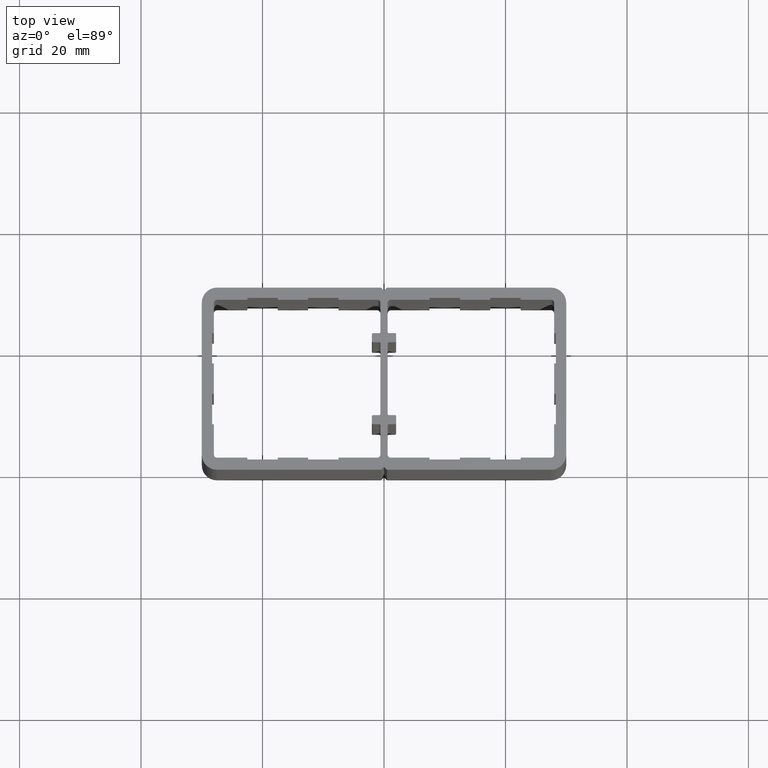
[diagram: clean part render]
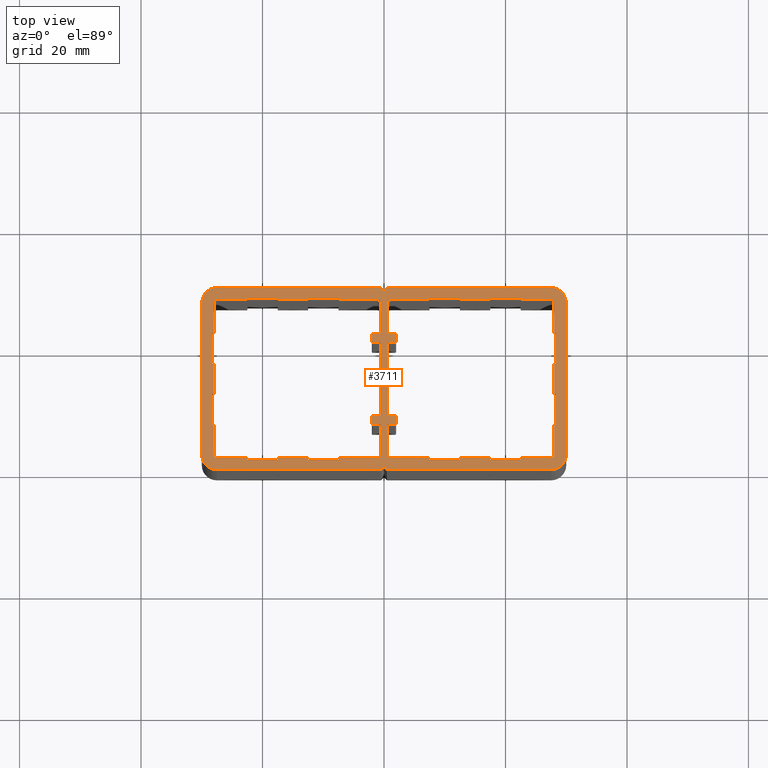
[diagram: same view with one face highlighted and labeled with its STEP entity id]
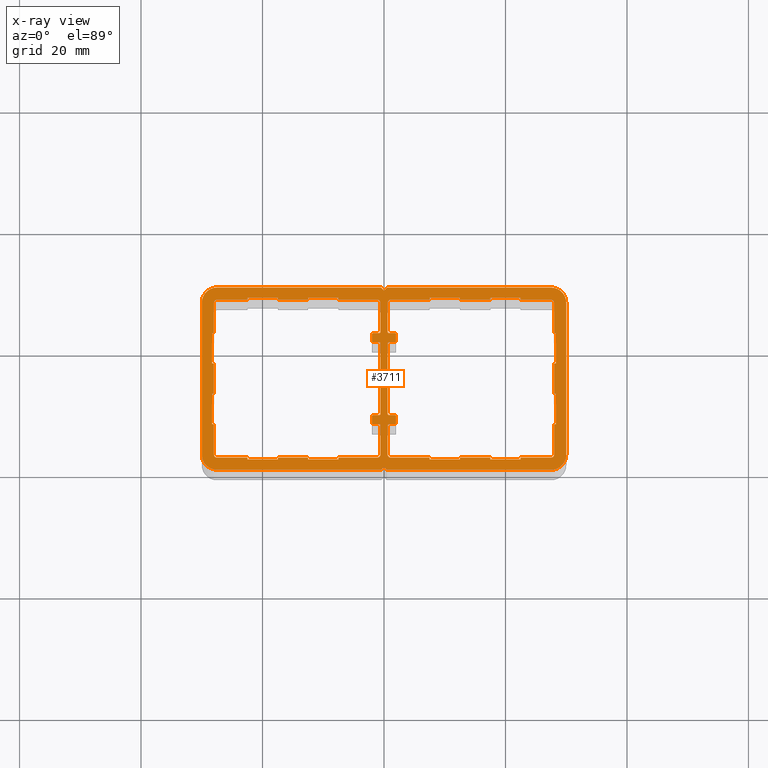
[diagram: x-ray of the same camera — body ghosted, the highlighted face saturated]
A machine part, top view. The second image highlights one B-rep face of the part: STEP entity #3711.
The next image is the same camera in x-ray: the body ghosted, the highlighted face saturated — about 0% of this face is hidden behind the body in this view.
In plain terms, the highlighted planar face has unit normal (0, 0, 1).
Its self-contained STEP definition (entity closure, byte-faithful):
#17=CARTESIAN_POINT('',(29.999999999985107,26.999999999972601,100.0));
#18=VERTEX_POINT('',#17);
#25=CARTESIAN_POINT('',(29.999999999985107,1.999999999997499,100.0));
#26=VERTEX_POINT('',#25);
#27=CARTESIAN_POINT('',(29.999999999985107,1.999999999997499,100.0));
#28=DIRECTION('',(0.0,1.0,0.0));
#29=VECTOR('',#28,24.999999999975103);
#30=LINE('',#27,#29);
#31=EDGE_CURVE('',#26,#18,#30,.T.);
#56=CARTESIAN_POINT('',(27.499999999987608,29.499999999969987,100.0));
#57=VERTEX_POINT('',#56);
#64=CARTESIAN_POINT('',(27.499999999987608,26.999999999972601,100.0));
#65=DIRECTION('',(0.0,0.0,1.0));
#66=DIRECTION('',(1.0,0.0,0.0));
#67=AXIS2_PLACEMENT_3D('',#64,#65,#66);
#68=CIRCLE('',#67,2.499999999997500);
#69=EDGE_CURVE('',#18,#57,#68,.T.);
#88=CARTESIAN_POINT('',(0.500000000000114,29.499999999969987,100.0));
#89=VERTEX_POINT('',#88);
#96=CARTESIAN_POINT('',(27.499999999987608,29.499999999969987,100.0));
#97=DIRECTION('',(-1.0,0.0,0.0));
#98=VECTOR('',#97,26.999999999987494);
#99=LINE('',#96,#98);
#100=EDGE_CURVE('',#57,#89,#99,.T.);
#119=CARTESIAN_POINT('',(0.0,28.999999999970100,100.0));
#120=VERTEX_POINT('',#119);
#127=CARTESIAN_POINT('',(0.500000000000114,29.499999999969987,100.0));
#128=DIRECTION('',(-0.707106781186708,-0.707106781186387,0.0));
#129=VECTOR('',#128,0.707106781186548);
#130=LINE('',#127,#129);
#131=EDGE_CURVE('',#89,#120,#130,.T.);
#150=CARTESIAN_POINT('',(-0.500000000000114,29.499999999970214,100.0));
#151=VERTEX_POINT('',#150);
#158=CARTESIAN_POINT('',(0.0,28.999999999970100,100.0));
#159=DIRECTION('',(-0.707106781186548,0.707106781186548,0.0));
#160=VECTOR('',#159,0.707106781186387);
#161=LINE('',#158,#160);
#162=EDGE_CURVE('',#120,#151,#161,.T.);
#181=CARTESIAN_POINT('',(-27.499999999987381,29.499999999970100,100.0));
#182=VERTEX_POINT('',#181);
#189=CARTESIAN_POINT('',(-0.500000000000114,29.499999999970214,100.0));
#190=DIRECTION('',(-1.0,0.0,0.0));
#191=VECTOR('',#190,26.999999999987267);
#192=LINE('',#189,#191);
#193=EDGE_CURVE('',#151,#182,#192,.T.);
#213=CARTESIAN_POINT('',(-29.999999999984993,26.999999999972601,100.0));
#214=VERTEX_POINT('',#213);
#221=CARTESIAN_POINT('',(-27.499999999987381,26.999999999972601,100.0));
#222=DIRECTION('',(0.0,0.0,1.0));
#223=DIRECTION('',(1.0,0.0,0.0));
#224=AXIS2_PLACEMENT_3D('',#221,#222,#223);
#225=CIRCLE('',#224,2.499999999997500);
#226=EDGE_CURVE('',#182,#214,#225,.T.);
#245=CARTESIAN_POINT('',(-29.999999999984880,1.999999999997499,100.0));
#246=VERTEX_POINT('',#245);
#253=CARTESIAN_POINT('',(-29.999999999984993,26.999999999972601,100.0));
#254=DIRECTION('',(0.0,-1.0,0.0));
#255=VECTOR('',#254,24.999999999975103);
#256=LINE('',#253,#255);
#257=EDGE_CURVE('',#214,#246,#256,.T.);
#277=CARTESIAN_POINT('',(-27.499999999987381,-0.499999999999886,100.0));
#278=VERTEX_POINT('',#277);
#285=CARTESIAN_POINT('',(-27.499999999987381,1.999999999997499,100.0));
#286=DIRECTION('',(0.0,0.0,1.0));
#287=DIRECTION('',(1.0,0.0,0.0));
#288=AXIS2_PLACEMENT_3D('',#285,#286,#287);
#289=CIRCLE('',#288,2.499999999997500);
#290=EDGE_CURVE('',#246,#278,#289,.T.);
#309=CARTESIAN_POINT('',(-0.499999999999886,-0.499999999999886,100.0));
#310=VERTEX_POINT('',#309);
#317=CARTESIAN_POINT('',(-27.499999999987381,-0.499999999999886,100.0));
#318=DIRECTION('',(1.0,0.0,0.0));
#319=VECTOR('',#318,26.999999999987494);
#320=LINE('',#317,#319);
#321=EDGE_CURVE('',#278,#310,#320,.T.);
#340=CARTESIAN_POINT('',(0.0,0.0,100.0));
#341=VERTEX_POINT('',#340);
#348=CARTESIAN_POINT('',(-0.499999999999886,-0.499999999999886,100.0));
#349=DIRECTION('',(0.707106781186548,0.707106781186548,0.0));
#350=VECTOR('',#349,0.707106781186387);
#351=LINE('',#348,#350);
#352=EDGE_CURVE('',#310,#341,#351,.T.);
#371=CARTESIAN_POINT('',(0.500000000000114,-0.499999999999886,100.0));
#372=VERTEX_POINT('',#371);
#379=CARTESIAN_POINT('',(0.0,0.0,100.0));
#380=DIRECTION('',(0.707106781186708,-0.707106781186387,0.0));
#381=VECTOR('',#380,0.707106781186548);
#382=LINE('',#379,#381);
#383=EDGE_CURVE('',#341,#372,#382,.T.);
#402=CARTESIAN_POINT('',(27.499999999987608,-0.500000000000000,100.0));
#403=VERTEX_POINT('',#402);
#410=CARTESIAN_POINT('',(0.500000000000114,-0.499999999999886,100.0));
#411=DIRECTION('',(1.0,0.0,0.0));
#412=VECTOR('',#411,26.999999999987494);
#413=LINE('',#410,#412);
#414=EDGE_CURVE('',#372,#403,#413,.T.);
#433=CARTESIAN_POINT('',(27.499999999987608,1.999999999997499,100.0));
#434=DIRECTION('',(0.0,0.0,1.0));
#435=DIRECTION('',(1.0,0.0,0.0));
#436=AXIS2_PLACEMENT_3D('',#433,#434,#435);
#437=CIRCLE('',#436,2.499999999997500);
#438=EDGE_CURVE('',#403,#26,#437,.T.);
#460=CARTESIAN_POINT('',(1.799999999997908,21.999999999980218,100.0));
#461=VERTEX_POINT('',#460);
#468=CARTESIAN_POINT('',(1.999999999997954,21.799999999980059,100.0));
#469=VERTEX_POINT('',#468);
#470=CARTESIAN_POINT('',(1.799999999997908,21.799999999980059,100.0));
#471=DIRECTION('',(0.0,0.0,1.0));
#472=DIRECTION('',(1.0,0.0,0.0));
#473=AXIS2_PLACEMENT_3D('',#470,#471,#472);
#474=CIRCLE('',#473,0.200000000000000);
#475=EDGE_CURVE('',#469,#461,#474,.T.);
#499=CARTESIAN_POINT('',(0.800000000014961,21.999999999980218,100.0));
#500=VERTEX_POINT('',#499);
#507=CARTESIAN_POINT('',(1.799999999997908,21.999999999980218,100.0));
#508=DIRECTION('',(-1.0,0.0,0.0));
#509=VECTOR('',#508,0.999999999982947);
#510=LINE('',#507,#509);
#511=EDGE_CURVE('',#461,#500,#510,.T.);
#531=CARTESIAN_POINT('',(0.600000000014916,22.199999999980264,100.0));
#532=VERTEX_POINT('',#531);
#539=CARTESIAN_POINT('',(0.800000000014961,22.199999999980264,100.0));
#540=DIRECTION('',(0.0,0.0,-1.0));
#541=DIRECTION('',(1.0,0.0,0.0));
#542=AXIS2_PLACEMENT_3D('',#539,#540,#541);
#543=CIRCLE('',#542,0.200000000000000);
#544=EDGE_CURVE('',#500,#532,#543,.T.);
#563=CARTESIAN_POINT('',(0.600000000014916,26.999999999972829,100.0));
#564=VERTEX_POINT('',#563);
#571=CARTESIAN_POINT('',(0.600000000014916,22.199999999980264,100.0));
#572=DIRECTION('',(0.0,1.0,0.0));
#573=VECTOR('',#572,4.799999999992565);
#574=LINE('',#571,#573);
#575=EDGE_CURVE('',#532,#564,#574,.T.);
#595=CARTESIAN_POINT('',(1.100000000014461,27.499999999972260,100.0));
#596=VERTEX_POINT('',#595);
#603=CARTESIAN_POINT('',(1.100000000014461,26.999999999972829,100.0));
#604=DIRECTION('',(0.0,0.0,-1.0));
#605=DIRECTION('',(1.0,0.0,0.0));
#606=AXIS2_PLACEMENT_3D('',#603,#604,#605);
#607=CIRCLE('',#606,0.499999999999500);
#608=EDGE_CURVE('',#564,#596,#607,.T.);
#627=CARTESIAN_POINT('',(7.500000000007503,27.499999999972260,100.0));
#628=VERTEX_POINT('',#627);
#635=CARTESIAN_POINT('',(1.100000000014461,27.499999999972260,100.0));
#636=DIRECTION('',(1.0,0.0,0.0));
#637=VECTOR('',#636,6.399999999993042);
#638=LINE('',#635,#637);
#639=EDGE_CURVE('',#596,#628,#638,.T.);
#658=CARTESIAN_POINT('',(7.500000000007503,27.799999999971988,100.0));
#659=VERTEX_POINT('',#658);
#666=CARTESIAN_POINT('',(7.500000000007503,27.499999999972260,100.0));
#667=DIRECTION('',(0.0,1.0,0.0));
#668=VECTOR('',#667,0.299999999999727);
#669=LINE('',#666,#668);
#670=EDGE_CURVE('',#628,#659,#669,.T.);
#689=CARTESIAN_POINT('',(12.500000000002615,27.799999999971988,100.0));
#690=VERTEX_POINT('',#689);
#697=CARTESIAN_POINT('',(7.500000000007503,27.799999999971988,100.0));
#698=DIRECTION('',(1.0,0.0,0.0));
#699=VECTOR('',#698,4.999999999995112);
#700=LINE('',#697,#699);
#701=EDGE_CURVE('',#659,#690,#700,.T.);
#720=CARTESIAN_POINT('',(12.500000000002615,27.499999999972260,100.0));
#721=VERTEX_POINT('',#720);
#728=CARTESIAN_POINT('',(12.500000000002615,27.799999999971988,100.0));
#729=DIRECTION('',(0.0,-1.0,0.0));
#730=VECTOR('',#729,0.299999999999727);
#731=LINE('',#728,#730);
#732=EDGE_CURVE('',#690,#721,#731,.T.);
#751=CARTESIAN_POINT('',(17.499999999997613,27.499999999972260,100.0));
#752=VERTEX_POINT('',#751);
#759=CARTESIAN_POINT('',(12.500000000002615,27.499999999972260,100.0));
#760=DIRECTION('',(1.0,0.0,0.0));
#761=VECTOR('',#760,4.999999999994998);
#762=LINE('',#759,#761);
#763=EDGE_CURVE('',#721,#752,#762,.T.);
#782=CARTESIAN_POINT('',(17.499999999997613,27.799999999971988,100.0));
#783=VERTEX_POINT('',#782);
#790=CARTESIAN_POINT('',(17.499999999997613,27.499999999972260,100.0));
#791=DIRECTION('',(0.0,1.0,0.0));
#792=VECTOR('',#791,0.299999999999727);
#793=LINE('',#790,#792);
#794=EDGE_CURVE('',#752,#783,#793,.T.);
#813=CARTESIAN_POINT('',(22.499999999992497,27.799999999971988,100.0));
#814=VERTEX_POINT('',#813);
#821=CARTESIAN_POINT('',(17.499999999997613,27.799999999971988,100.0));
#822=DIRECTION('',(1.0,0.0,0.0));
#823=VECTOR('',#822,4.999999999994884);
#824=LINE('',#821,#823);
#825=EDGE_CURVE('',#783,#814,#824,.T.);
#844=CARTESIAN_POINT('',(22.499999999992497,27.499999999972260,100.0));
#845=VERTEX_POINT('',#844);
#852=CARTESIAN_POINT('',(22.499999999992497,27.799999999971988,100.0));
#853=DIRECTION('',(0.0,-1.0,0.0));
#854=VECTOR('',#853,0.299999999999727);
#855=LINE('',#852,#854);
#856=EDGE_CURVE('',#814,#845,#855,.T.);
#875=CARTESIAN_POINT('',(27.499999999987608,27.499999999972374,100.0));
#876=VERTEX_POINT('',#875);
#883=CARTESIAN_POINT('',(22.499999999992497,27.499999999972260,100.0));
#884=DIRECTION('',(1.0,0.0,0.0));
#885=VECTOR('',#884,4.999999999995112);
#886=LINE('',#883,#885);
#887=EDGE_CURVE('',#845,#876,#886,.T.);
#907=CARTESIAN_POINT('',(27.999999999987153,26.999999999972829,100.0));
#908=VERTEX_POINT('',#907);
#915=CARTESIAN_POINT('',(27.499999999987608,26.999999999972829,100.0));
#916=DIRECTION('',(0.0,0.0,-1.0));
#917=DIRECTION('',(1.0,0.0,0.0));
#918=AXIS2_PLACEMENT_3D('',#915,#916,#917);
#919=CIRCLE('',#918,0.499999999999500);
#920=EDGE_CURVE('',#876,#908,#919,.T.);
#939=CARTESIAN_POINT('',(27.999999999987153,21.999999999977717,100.0));
#940=VERTEX_POINT('',#939);
#947=CARTESIAN_POINT('',(27.999999999987153,26.999999999972829,100.0));
#948=DIRECTION('',(0.0,-1.0,0.0));
#949=VECTOR('',#948,4.999999999995112);
#950=LINE('',#947,#949);
#951=EDGE_CURVE('',#908,#940,#950,.T.);
#970=CARTESIAN_POINT('',(28.299999999986767,21.999999999977717,100.0));
#971=VERTEX_POINT('',#970);
#978=CARTESIAN_POINT('',(27.999999999987153,21.999999999977717,100.0));
#979=DIRECTION('',(1.0,0.0,0.0));
#980=VECTOR('',#979,0.299999999999613);
#981=LINE('',#978,#980);
#982=EDGE_CURVE('',#940,#971,#981,.T.);
#1001=CARTESIAN_POINT('',(28.299999999986767,16.999999999982606,100.0));
#1002=VERTEX_POINT('',#1001);
#1009=CARTESIAN_POINT('',(28.299999999986767,21.999999999977717,100.0));
#1010=DIRECTION('',(0.0,-1.0,0.0));
#1011=VECTOR('',#1010,4.999999999995112);
#1012=LINE('',#1009,#1011);
#1013=EDGE_CURVE('',#971,#1002,#1012,.T.);
#1032=CARTESIAN_POINT('',(27.999999999987153,16.999999999982606,100.0));
#1033=VERTEX_POINT('',#1032);
#1040=CARTESIAN_POINT('',(28.299999999986767,16.999999999982606,100.0));
#1041=DIRECTION('',(-1.0,0.0,0.0));
#1042=VECTOR('',#1041,0.299999999999613);
#1043=LINE('',#1040,#1042);
#1044=EDGE_CURVE('',#1002,#1033,#1043,.T.);
#1063=CARTESIAN_POINT('',(27.999999999987153,11.999999999987494,100.0));
#1064=VERTEX_POINT('',#1063);
#1071=CARTESIAN_POINT('',(27.999999999987153,16.999999999982606,100.0));
#1072=DIRECTION('',(0.0,-1.0,0.0));
#1073=VECTOR('',#1072,4.999999999995112);
#1074=LINE('',#1071,#1073);
#1075=EDGE_CURVE('',#1033,#1064,#1074,.T.);
#1094=CARTESIAN_POINT('',(28.299999999986767,11.999999999987494,100.0));
#1095=VERTEX_POINT('',#1094);
#1102=CARTESIAN_POINT('',(27.999999999987153,11.999999999987494,100.0));
#1103=DIRECTION('',(1.0,0.0,0.0));
#1104=VECTOR('',#1103,0.299999999999613);
#1105=LINE('',#1102,#1104);
#1106=EDGE_CURVE('',#1064,#1095,#1105,.T.);
#1125=CARTESIAN_POINT('',(28.299999999986767,6.999999999992610,100.0));
#1126=VERTEX_POINT('',#1125);
#1133=CARTESIAN_POINT('',(28.299999999986767,11.999999999987494,100.0));
#1134=DIRECTION('',(0.0,-1.0,0.0));
#1135=VECTOR('',#1134,4.999999999994884);
#1136=LINE('',#1133,#1135);
#1137=EDGE_CURVE('',#1095,#1126,#1136,.T.);
#1156=CARTESIAN_POINT('',(27.999999999987153,6.999999999992610,100.0));
#1157=VERTEX_POINT('',#1156);
#1164=CARTESIAN_POINT('',(28.299999999986767,6.999999999992610,100.0));
#1165=DIRECTION('',(-1.0,0.0,0.0));
#1166=VECTOR('',#1165,0.299999999999613);
#1167=LINE('',#1164,#1166);
#1168=EDGE_CURVE('',#1126,#1157,#1167,.T.);
#1187=CARTESIAN_POINT('',(27.999999999987153,1.999999999997499,100.0));
#1188=VERTEX_POINT('',#1187);
#1195=CARTESIAN_POINT('',(27.999999999987153,6.999999999992610,100.0));
#1196=DIRECTION('',(0.0,-1.0,0.0));
#1197=VECTOR('',#1196,4.999999999995112);
#1198=LINE('',#1195,#1197);
#1199=EDGE_CURVE('',#1157,#1188,#1198,.T.);
#1219=CARTESIAN_POINT('',(27.499999999987608,1.499999999997954,100.0));
#1220=VERTEX_POINT('',#1219);
#1227=CARTESIAN_POINT('',(27.499999999987608,1.999999999997499,100.0));
#1228=DIRECTION('',(0.0,0.0,-1.0));
#1229=DIRECTION('',(1.0,0.0,0.0));
#1230=AXIS2_PLACEMENT_3D('',#1227,#1228,#1229);
#1231=CIRCLE('',#1230,0.499999999999500);
#1232=EDGE_CURVE('',#1188,#1220,#1231,.T.);
#1251=CARTESIAN_POINT('',(22.499999999992497,1.499999999997954,100.0));
#1252=VERTEX_POINT('',#1251);
#1259=CARTESIAN_POINT('',(27.499999999987608,1.499999999997954,100.0));
#1260=DIRECTION('',(-1.0,0.0,0.0));
#1261=VECTOR('',#1260,4.999999999995112);
#1262=LINE('',#1259,#1261);
#1263=EDGE_CURVE('',#1220,#1252,#1262,.T.);
#1282=CARTESIAN_POINT('',(22.499999999992497,1.199999999998340,100.0));
#1283=VERTEX_POINT('',#1282);
#1290=CARTESIAN_POINT('',(22.499999999992497,1.499999999997954,100.0));
#1291=DIRECTION('',(0.0,-1.0,0.0));
#1292=VECTOR('',#1291,0.299999999999613);
#1293=LINE('',#1290,#1292);
#1294=EDGE_CURVE('',#1252,#1283,#1293,.T.);
#1313=CARTESIAN_POINT('',(17.499999999997613,1.199999999998340,100.0));
#1314=VERTEX_POINT('',#1313);
#1321=CARTESIAN_POINT('',(22.499999999992497,1.199999999998340,100.0));
#1322=DIRECTION('',(-1.0,0.0,0.0));
#1323=VECTOR('',#1322,4.999999999994884);
#1324=LINE('',#1321,#1323);
#1325=EDGE_CURVE('',#1283,#1314,#1324,.T.);
#1344=CARTESIAN_POINT('',(17.499999999997613,1.499999999997954,100.0));
#1345=VERTEX_POINT('',#1344);
#1352=CARTESIAN_POINT('',(17.499999999997613,1.199999999998340,100.0));
#1353=DIRECTION('',(0.0,1.0,0.0));
#1354=VECTOR('',#1353,0.299999999999613);
#1355=LINE('',#1352,#1354);
#1356=EDGE_CURVE('',#1314,#1345,#1355,.T.);
#1375=CARTESIAN_POINT('',(12.500000000002615,1.499999999997954,100.0));
#1376=VERTEX_POINT('',#1375);
#1383=CARTESIAN_POINT('',(17.499999999997613,1.499999999997954,100.0));
#1384=DIRECTION('',(-1.0,0.0,0.0));
#1385=VECTOR('',#1384,4.999999999994998);
#1386=LINE('',#1383,#1385);
#1387=EDGE_CURVE('',#1345,#1376,#1386,.T.);
#1406=CARTESIAN_POINT('',(12.500000000002615,1.199999999998340,100.0));
#1407=VERTEX_POINT('',#1406);
#1414=CARTESIAN_POINT('',(12.500000000002615,1.499999999997954,100.0));
#1415=DIRECTION('',(0.0,-1.0,0.0));
#1416=VECTOR('',#1415,0.299999999999613);
#1417=LINE('',#1414,#1416);
#1418=EDGE_CURVE('',#1376,#1407,#1417,.T.);
#1437=CARTESIAN_POINT('',(7.500000000007503,1.199999999998340,100.0));
#1438=VERTEX_POINT('',#1437);
#1445=CARTESIAN_POINT('',(12.500000000002615,1.199999999998340,100.0));
#1446=DIRECTION('',(-1.0,0.0,0.0));
#1447=VECTOR('',#1446,4.999999999995112);
#1448=LINE('',#1445,#1447);
#1449=EDGE_CURVE('',#1407,#1438,#1448,.T.);
#1468=CARTESIAN_POINT('',(7.500000000007503,1.499999999997954,100.0));
#1469=VERTEX_POINT('',#1468);
#1476=CARTESIAN_POINT('',(7.500000000007503,1.199999999998340,100.0));
#1477=DIRECTION('',(0.0,1.0,0.0));
#1478=VECTOR('',#1477,0.299999999999613);
#1479=LINE('',#1476,#1478);
#1480=EDGE_CURVE('',#1438,#1469,#1479,.T.);
#1499=CARTESIAN_POINT('',(1.100000000014461,1.499999999997954,100.0));
#1500=VERTEX_POINT('',#1499);
#1507=CARTESIAN_POINT('',(7.500000000007503,1.499999999997954,100.0));
#1508=DIRECTION('',(-1.0,0.0,0.0));
#1509=VECTOR('',#1508,6.399999999993042);
#1510=LINE('',#1507,#1509);
#1511=EDGE_CURVE('',#1469,#1500,#1510,.T.);
#1531=CARTESIAN_POINT('',(0.600000000014916,1.999999999997499,100.0));
#1532=VERTEX_POINT('',#1531);
#1539=CARTESIAN_POINT('',(1.100000000014461,1.999999999997499,100.0));
#1540=DIRECTION('',(0.0,0.0,-1.0));
#1541=DIRECTION('',(1.0,0.0,0.0));
#1542=AXIS2_PLACEMENT_3D('',#1539,#1540,#1541);
#1543=CIRCLE('',#1542,0.499999999999500);
#1544=EDGE_CURVE('',#1500,#1532,#1543,.T.);
#1563=CARTESIAN_POINT('',(0.600000000014916,6.799999999990064,100.0));
#1564=VERTEX_POINT('',#1563);
#1571=CARTESIAN_POINT('',(0.600000000014916,1.999999999997499,100.0));
#1572=DIRECTION('',(0.0,1.0,0.0));
#1573=VECTOR('',#1572,4.799999999992565);
#1574=LINE('',#1571,#1573);
#1575=EDGE_CURVE('',#1532,#1564,#1574,.T.);
#1595=CARTESIAN_POINT('',(0.800000000014961,6.999999999990109,100.0));
#1596=VERTEX_POINT('',#1595);
#1603=CARTESIAN_POINT('',(0.800000000014961,6.799999999990064,100.0));
#1604=DIRECTION('',(0.0,0.0,-1.0));
#1605=DIRECTION('',(1.0,0.0,0.0));
#1606=AXIS2_PLACEMENT_3D('',#1603,#1604,#1605);
#1607=CIRCLE('',#1606,0.200000000000000);
#1608=EDGE_CURVE('',#1564,#1596,#1607,.T.);
#1627=CARTESIAN_POINT('',(1.799999999997908,6.999999999990223,100.0));
#1628=VERTEX_POINT('',#1627);
#1635=CARTESIAN_POINT('',(0.800000000014961,6.999999999990109,100.0));
#1636=DIRECTION('',(1.0,0.0,0.0));
#1637=VECTOR('',#1636,0.999999999982947);
#1638=LINE('',#1635,#1637);
#1639=EDGE_CURVE('',#1596,#1628,#1638,.T.);
#1659=CARTESIAN_POINT('',(1.999999999998067,7.199999999990268,100.0));
#1660=VERTEX_POINT('',#1659);
#1667=CARTESIAN_POINT('',(1.799999999997908,7.199999999990268,100.0));
#1668=DIRECTION('',(0.0,0.0,1.0));
#1669=DIRECTION('',(1.0,0.0,0.0));
#1670=AXIS2_PLACEMENT_3D('',#1667,#1668,#1669);
#1671=CIRCLE('',#1670,0.200000000000000);
#1672=EDGE_CURVE('',#1628,#1660,#1671,.T.);
#1691=CARTESIAN_POINT('',(1.999999999997954,8.299999999985062,100.0));
#1692=VERTEX_POINT('',#1691);
#1699=CARTESIAN_POINT('',(1.999999999998067,7.199999999990268,100.0));
#1700=DIRECTION('',(0.0,1.0,0.0));
#1701=VECTOR('',#1700,1.099999999994793);
#1702=LINE('',#1699,#1701);
#1703=EDGE_CURVE('',#1660,#1692,#1702,.T.);
#1723=CARTESIAN_POINT('',(1.799999999997908,8.499999999984993,100.0));
#1724=VERTEX_POINT('',#1723);
#1731=CARTESIAN_POINT('',(1.799999999997908,8.299999999985062,100.0));
#1732=DIRECTION('',(0.0,0.0,1.0));
#1733=DIRECTION('',(1.0,0.0,0.0));
#1734=AXIS2_PLACEMENT_3D('',#1731,#1732,#1733);
#1735=CIRCLE('',#1734,0.200000000000000);
#1736=EDGE_CURVE('',#1692,#1724,#1735,.T.);
#1755=CARTESIAN_POINT('',(0.800000000014961,8.499999999985107,100.0));
#1756=VERTEX_POINT('',#1755);
#1763=CARTESIAN_POINT('',(1.799999999997908,8.499999999984993,100.0));
#1764=DIRECTION('',(-1.0,2.273737E-013,0.0));
#1765=VECTOR('',#1764,0.999999999982947);
#1766=LINE('',#1763,#1765);
#1767=EDGE_CURVE('',#1724,#1756,#1766,.T.);
#1787=CARTESIAN_POINT('',(0.600000000014916,8.699999999985153,100.0));
#1788=VERTEX_POINT('',#1787);
#1795=CARTESIAN_POINT('',(0.800000000014961,8.699999999985153,100.0));
#1796=DIRECTION('',(0.0,0.0,-1.0));
#1797=DIRECTION('',(1.0,0.0,0.0));
#1798=AXIS2_PLACEMENT_3D('',#1795,#1796,#1797);
#1799=CIRCLE('',#1798,0.200000000000000);
#1800=EDGE_CURVE('',#1756,#1788,#1799,.T.);
#1819=CARTESIAN_POINT('',(0.600000000014916,20.299999999985175,100.0));
#1820=VERTEX_POINT('',#1819);
#1827=CARTESIAN_POINT('',(0.600000000014916,8.699999999985153,100.0));
#1828=DIRECTION('',(0.0,1.0,0.0));
#1829=VECTOR('',#1828,11.600000000000023);
#1830=LINE('',#1827,#1829);
#1831=EDGE_CURVE('',#1788,#1820,#1830,.T.);
#1851=CARTESIAN_POINT('',(0.800000000014961,20.499999999985107,100.0));
#1852=VERTEX_POINT('',#1851);
#1859=CARTESIAN_POINT('',(0.800000000014961,20.299999999985175,100.0));
#1860=DIRECTION('',(0.0,0.0,-1.0));
#1861=DIRECTION('',(1.0,0.0,0.0));
#1862=AXIS2_PLACEMENT_3D('',#1859,#1860,#1861);
#1863=CIRCLE('',#1862,0.200000000000000);
#1864=EDGE_CURVE('',#1820,#1852,#1863,.T.);
#1883=CARTESIAN_POINT('',(1.799999999997908,20.499999999985221,100.0));
#1884=VERTEX_POINT('',#1883);
#1891=CARTESIAN_POINT('',(0.800000000014961,20.499999999985107,100.0));
#1892=DIRECTION('',(1.0,0.0,0.0));
#1893=VECTOR('',#1892,0.999999999982947);
#1894=LINE('',#1891,#1893);
#1895=EDGE_CURVE('',#1852,#1884,#1894,.T.);
#1915=CARTESIAN_POINT('',(1.999999999998067,20.699999999985266,100.0));
#1916=VERTEX_POINT('',#1915);
#1923=CARTESIAN_POINT('',(1.799999999997908,20.699999999985266,100.0));
#1924=DIRECTION('',(0.0,0.0,1.0));
#1925=DIRECTION('',(1.0,0.0,0.0));
#1926=AXIS2_PLACEMENT_3D('',#1923,#1924,#1925);
#1927=CIRCLE('',#1926,0.200000000000000);
#1928=EDGE_CURVE('',#1884,#1916,#1927,.T.);
#1946=CARTESIAN_POINT('',(1.999999999998067,20.699999999985266,100.0));
#1947=DIRECTION('',(0.0,1.0,0.0));
#1948=VECTOR('',#1947,1.099999999994793);
#1949=LINE('',#1946,#1948);
#1950=EDGE_CURVE('',#1916,#469,#1949,.T.);
#1972=CARTESIAN_POINT('',(-0.799999999984948,21.999999999979991,100.0));
#1973=VERTEX_POINT('',#1972);
#1980=CARTESIAN_POINT('',(-0.599999999984902,22.199999999980150,100.0));
#1981=VERTEX_POINT('',#1980);
#1982=CARTESIAN_POINT('',(-0.799999999984948,22.199999999980150,100.0));
#1983=DIRECTION('',(0.0,0.0,-1.0));
#1984=DIRECTION('',(1.0,0.0,0.0));
#1985=AXIS2_PLACEMENT_3D('',#1982,#1983,#1984);
#1986=CIRCLE('',#1985,0.200000000000000);
#1987=EDGE_CURVE('',#1981,#1973,#1986,.T.);
#2011=CARTESIAN_POINT('',(-1.799999999997795,21.999999999979991,100.0));
#2012=VERTEX_POINT('',#2011);
#2019=CARTESIAN_POINT('',(-0.799999999984948,21.999999999979991,100.0));
#2020=DIRECTION('',(-1.0,0.0,0.0));
#2021=VECTOR('',#2020,1.000000000013074);
#2022=LINE('',#2019,#2021);
#2023=EDGE_CURVE('',#1973,#2012,#2022,.T.);
#2043=CARTESIAN_POINT('',(-1.999999999997726,21.799999999979946,100.0));
#2044=VERTEX_POINT('',#2043);
#2051=CARTESIAN_POINT('',(-1.799999999997795,21.799999999979946,100.0));
#2052=DIRECTION('',(0.0,0.0,1.0));
#2053=DIRECTION('',(1.0,0.0,0.0));
#2054=AXIS2_PLACEMENT_3D('',#2051,#2052,#2053);
#2055=CIRCLE('',#2054,0.200000000000000);
#2056=EDGE_CURVE('',#2012,#2044,#2055,.T.);
#2075=CARTESIAN_POINT('',(-1.999999999998067,20.699999999985039,100.0));
#2076=VERTEX_POINT('',#2075);
#2083=CARTESIAN_POINT('',(-1.999999999997726,21.799999999979946,100.0));
#2084=DIRECTION('',(0.0,-1.0,0.0));
#2085=VECTOR('',#2084,1.099999999994907);
#2086=LINE('',#2083,#2085);
#2087=EDGE_CURVE('',#2044,#2076,#2086,.T.);
#2107=CARTESIAN_POINT('',(-1.799999999998022,20.499999999985107,100.0));
#2108=VERTEX_POINT('',#2107);
#2115=CARTESIAN_POINT('',(-1.799999999998022,20.699999999985039,100.0));
#2116=DIRECTION('',(0.0,0.0,1.0));
#2117=DIRECTION('',(1.0,0.0,0.0));
#2118=AXIS2_PLACEMENT_3D('',#2115,#2116,#2117);
#2119=CIRCLE('',#2118,0.200000000000000);
#2120=EDGE_CURVE('',#2076,#2108,#2119,.T.);
#2139=CARTESIAN_POINT('',(-0.799999999984948,20.499999999985107,100.0));
#2140=VERTEX_POINT('',#2139);
#2147=CARTESIAN_POINT('',(-1.799999999998022,20.499999999985107,100.0));
#2148=DIRECTION('',(1.0,0.0,0.0));
#2149=VECTOR('',#2148,1.000000000013074);
#2150=LINE('',#2147,#2149);
#2151=EDGE_CURVE('',#2108,#2140,#2150,.T.);
#2171=CARTESIAN_POINT('',(-0.599999999985130,20.299999999985062,100.0));
#2172=VERTEX_POINT('',#2171);
#2179=CARTESIAN_POINT('',(-0.799999999984948,20.299999999985062,100.0));
#2180=DIRECTION('',(0.0,0.0,-1.0));
#2181=DIRECTION('',(1.0,0.0,0.0));
#2182=AXIS2_PLACEMENT_3D('',#2179,#2180,#2181);
#2183=CIRCLE('',#2182,0.200000000000000);
#2184=EDGE_CURVE('',#2140,#2172,#2183,.T.);
#2203=CARTESIAN_POINT('',(-0.599999999984902,8.699999999985153,100.0));
#2204=VERTEX_POINT('',#2203);
#2211=CARTESIAN_POINT('',(-0.599999999985130,20.299999999985062,100.0));
#2212=DIRECTION('',(0.0,-1.0,0.0));
#2213=VECTOR('',#2212,11.599999999999909);
#2214=LINE('',#2211,#2213);
#2215=EDGE_CURVE('',#2172,#2204,#2214,.T.);
#2235=CARTESIAN_POINT('',(-0.799999999984948,8.499999999984993,100.0));
#2236=VERTEX_POINT('',#2235);
#2243=CARTESIAN_POINT('',(-0.799999999984948,8.699999999985153,100.0));
#2244=DIRECTION('',(0.0,0.0,-1.0));
#2245=DIRECTION('',(1.0,0.0,0.0));
#2246=AXIS2_PLACEMENT_3D('',#2243,#2244,#2245);
#2247=CIRCLE('',#2246,0.200000000000000);
#2248=EDGE_CURVE('',#2204,#2236,#2247,.T.);
#2267=CARTESIAN_POINT('',(-1.799999999997795,8.499999999984993,100.0));
#2268=VERTEX_POINT('',#2267);
#2275=CARTESIAN_POINT('',(-0.799999999984948,8.499999999984993,100.0));
#2276=DIRECTION('',(-1.0,0.0,0.0));
#2277=VECTOR('',#2276,1.000000000013074);
#2278=LINE('',#2275,#2277);
#2279=EDGE_CURVE('',#2236,#2268,#2278,.T.);
#2299=CARTESIAN_POINT('',(-1.999999999997726,8.299999999984948,100.0));
#2300=VERTEX_POINT('',#2299);
#2307=CARTESIAN_POINT('',(-1.799999999997795,8.299999999984948,100.0));
#2308=DIRECTION('',(0.0,0.0,1.0));
#2309=DIRECTION('',(1.0,0.0,0.0));
#2310=AXIS2_PLACEMENT_3D('',#2307,#2308,#2309);
#2311=CIRCLE('',#2310,0.200000000000000);
#2312=EDGE_CURVE('',#2268,#2300,#2311,.T.);
#2331=CARTESIAN_POINT('',(-1.999999999998067,7.199999999989814,100.0));
#2332=VERTEX_POINT('',#2331);
#2339=CARTESIAN_POINT('',(-1.999999999997726,8.299999999984948,100.0));
#2340=DIRECTION('',(0.0,-1.0,0.0));
#2341=VECTOR('',#2340,1.099999999995134);
#2342=LINE('',#2339,#2341);
#2343=EDGE_CURVE('',#2300,#2332,#2342,.T.);
#2363=CARTESIAN_POINT('',(-1.799999999998022,6.999999999989882,100.0));
#2364=VERTEX_POINT('',#2363);
#2371=CARTESIAN_POINT('',(-1.799999999998022,7.199999999989814,100.0));
#2372=DIRECTION('',(0.0,0.0,1.0));
#2373=DIRECTION('',(1.0,0.0,0.0));
#2374=AXIS2_PLACEMENT_3D('',#2371,#2372,#2373);
#2375=CIRCLE('',#2374,0.200000000000000);
#2376=EDGE_CURVE('',#2332,#2364,#2375,.T.);
#2395=CARTESIAN_POINT('',(-0.799999999984948,6.999999999990109,100.0));
#2396=VERTEX_POINT('',#2395);
#2403=CARTESIAN_POINT('',(-1.799999999998022,6.999999999989882,100.0));
#2404=DIRECTION('',(1.0,2.273737E-013,0.0));
#2405=VECTOR('',#2404,1.000000000013074);
#2406=LINE('',#2403,#2405);
#2407=EDGE_CURVE('',#2364,#2396,#2406,.T.);
#2427=CARTESIAN_POINT('',(-0.599999999985130,6.799999999990064,100.0));
#2428=VERTEX_POINT('',#2427);
#2435=CARTESIAN_POINT('',(-0.799999999984948,6.799999999990064,100.0));
#2436=DIRECTION('',(0.0,0.0,-1.0));
#2437=DIRECTION('',(1.0,0.0,0.0));
#2438=AXIS2_PLACEMENT_3D('',#2435,#2436,#2437);
#2439=CIRCLE('',#2438,0.200000000000000);
#2440=EDGE_CURVE('',#2396,#2428,#2439,.T.);
#2459=CARTESIAN_POINT('',(-0.599999999984902,1.999999999997499,100.0));
#2460=VERTEX_POINT('',#2459);
#2467=CARTESIAN_POINT('',(-0.599999999985130,6.799999999990064,100.0));
#2468=DIRECTION('',(0.0,-1.0,0.0));
#2469=VECTOR('',#2468,4.799999999992565);
#2470=LINE('',#2467,#2469);
#2471=EDGE_CURVE('',#2428,#2460,#2470,.T.);
#2491=CARTESIAN_POINT('',(-1.099999999984448,1.499999999997954,100.0));
#2492=VERTEX_POINT('',#2491);
#2499=CARTESIAN_POINT('',(-1.099999999984448,1.999999999997499,100.0));
#2500=DIRECTION('',(0.0,0.0,-1.0));
#2501=DIRECTION('',(1.0,0.0,0.0));
#2502=AXIS2_PLACEMENT_3D('',#2499,#2500,#2501);
#2503=CIRCLE('',#2502,0.499999999999500);
#2504=EDGE_CURVE('',#2460,#2492,#2503,.T.);
#2523=CARTESIAN_POINT('',(-7.500000000007390,1.499999999997954,100.0));
#2524=VERTEX_POINT('',#2523);
#2531=CARTESIAN_POINT('',(-1.099999999984448,1.499999999997954,100.0));
#2532=DIRECTION('',(-1.0,0.0,0.0));
#2533=VECTOR('',#2532,6.400000000022942);
#2534=LINE('',#2531,#2533);
#2535=EDGE_CURVE('',#2492,#2524,#2534,.T.);
#2554=CARTESIAN_POINT('',(-7.500000000007390,1.199999999998340,100.0));
#2555=VERTEX_POINT('',#2554);
#2562=CARTESIAN_POINT('',(-7.500000000007390,1.499999999997954,100.0));
#2563=DIRECTION('',(0.0,-1.0,0.0));
#2564=VECTOR('',#2563,0.299999999999613);
#2565=LINE('',#2562,#2564);
#2566=EDGE_CURVE('',#2524,#2555,#2565,.T.);
#2585=CARTESIAN_POINT('',(-12.500000000002501,1.199999999998340,100.0));
#2586=VERTEX_POINT('',#2585);
#2593=CARTESIAN_POINT('',(-7.500000000007390,1.199999999998340,100.0));
#2594=DIRECTION('',(-1.0,0.0,0.0));
#2595=VECTOR('',#2594,4.999999999995112);
#2596=LINE('',#2593,#2595);
#2597=EDGE_CURVE('',#2555,#2586,#2596,.T.);
#2616=CARTESIAN_POINT('',(-12.500000000002501,1.499999999997954,100.0));
#2617=VERTEX_POINT('',#2616);
#2624=CARTESIAN_POINT('',(-12.500000000002501,1.199999999998340,100.0));
#2625=DIRECTION('',(0.0,1.0,0.0));
#2626=VECTOR('',#2625,0.299999999999613);
#2627=LINE('',#2624,#2626);
#2628=EDGE_CURVE('',#2586,#2617,#2627,.T.);
#2647=CARTESIAN_POINT('',(-17.499999999997385,1.499999999997954,100.0));
#2648=VERTEX_POINT('',#2647);
#2655=CARTESIAN_POINT('',(-12.500000000002501,1.499999999997954,100.0));
#2656=DIRECTION('',(-1.0,0.0,0.0));
#2657=VECTOR('',#2656,4.999999999994884);
#2658=LINE('',#2655,#2657);
#2659=EDGE_CURVE('',#2617,#2648,#2658,.T.);
#2678=CARTESIAN_POINT('',(-17.499999999997385,1.199999999998340,100.0));
#2679=VERTEX_POINT('',#2678);
#2686=CARTESIAN_POINT('',(-17.499999999997385,1.499999999997954,100.0));
#2687=DIRECTION('',(0.0,-1.0,0.0));
#2688=VECTOR('',#2687,0.299999999999613);
#2689=LINE('',#2686,#2688);
#2690=EDGE_CURVE('',#2648,#2679,#2689,.T.);
#2709=CARTESIAN_POINT('',(-22.499999999992269,1.199999999998340,100.0));
#2710=VERTEX_POINT('',#2709);
#2717=CARTESIAN_POINT('',(-17.499999999997385,1.199999999998340,100.0));
#2718=DIRECTION('',(-1.0,0.0,0.0));
#2719=VECTOR('',#2718,4.999999999994884);
#2720=LINE('',#2717,#2719);
#2721=EDGE_CURVE('',#2679,#2710,#2720,.T.);
#2740=CARTESIAN_POINT('',(-22.499999999992269,1.499999999997954,100.0));
#2741=VERTEX_POINT('',#2740);
#2748=CARTESIAN_POINT('',(-22.499999999992269,1.199999999998340,100.0));
#2749=DIRECTION('',(0.0,1.0,0.0));
#2750=VECTOR('',#2749,0.299999999999613);
#2751=LINE('',#2748,#2750);
#2752=EDGE_CURVE('',#2710,#2741,#2751,.T.);
#2771=CARTESIAN_POINT('',(-27.499999999987608,1.499999999997954,100.0));
#2772=VERTEX_POINT('',#2771);
#2779=CARTESIAN_POINT('',(-22.499999999992269,1.499999999997954,100.0));
#2780=DIRECTION('',(-1.0,0.0,0.0));
#2781=VECTOR('',#2780,4.999999999995339);
#2782=LINE('',#2779,#2781);
#2783=EDGE_CURVE('',#2741,#2772,#2782,.T.);
#2803=CARTESIAN_POINT('',(-27.999999999987153,1.999999999997499,100.0));
#2804=VERTEX_POINT('',#2803);
#2811=CARTESIAN_POINT('',(-27.499999999987608,1.999999999997499,100.0));
#2812=DIRECTION('',(0.0,0.0,-1.0));
#2813=DIRECTION('',(1.0,0.0,0.0));
#2814=AXIS2_PLACEMENT_3D('',#2811,#2812,#2813);
#2815=CIRCLE('',#2814,0.499999999999500);
#2816=EDGE_CURVE('',#2772,#2804,#2815,.T.);
#2835=CARTESIAN_POINT('',(-27.999999999987153,6.999999999992610,100.0));
#2836=VERTEX_POINT('',#2835);
#2843=CARTESIAN_POINT('',(-27.999999999987153,1.999999999997499,100.0));
#2844=DIRECTION('',(0.0,1.0,0.0));
#2845=VECTOR('',#2844,4.999999999995112);
#2846=LINE('',#2843,#2845);
#2847=EDGE_CURVE('',#2804,#2836,#2846,.T.);
#2866=CARTESIAN_POINT('',(-28.299999999986767,6.999999999992610,100.0));
#2867=VERTEX_POINT('',#2866);
#2874=CARTESIAN_POINT('',(-27.999999999987153,6.999999999992610,100.0));
#2875=DIRECTION('',(-1.0,0.0,0.0));
#2876=VECTOR('',#2875,0.299999999999613);
#2877=LINE('',#2874,#2876);
#2878=EDGE_CURVE('',#2836,#2867,#2877,.T.);
#2897=CARTESIAN_POINT('',(-28.299999999986767,11.999999999987494,100.0));
#2898=VERTEX_POINT('',#2897);
#2905=CARTESIAN_POINT('',(-28.299999999986767,6.999999999992610,100.0));
#2906=DIRECTION('',(0.0,1.0,0.0));
#2907=VECTOR('',#2906,4.999999999994884);
#2908=LINE('',#2905,#2907);
#2909=EDGE_CURVE('',#2867,#2898,#2908,.T.);
#2928=CARTESIAN_POINT('',(-27.999999999987153,11.999999999987494,100.0));
#2929=VERTEX_POINT('',#2928);
#2936=CARTESIAN_POINT('',(-28.299999999986767,11.999999999987494,100.0));
#2937=DIRECTION('',(1.0,0.0,0.0));
#2938=VECTOR('',#2937,0.299999999999613);
#2939=LINE('',#2936,#2938);
#2940=EDGE_CURVE('',#2898,#2929,#2939,.T.);
#2959=CARTESIAN_POINT('',(-27.999999999987153,16.999999999982606,100.0));
#2960=VERTEX_POINT('',#2959);
#2967=CARTESIAN_POINT('',(-27.999999999987153,11.999999999987494,100.0));
#2968=DIRECTION('',(0.0,1.0,0.0));
#2969=VECTOR('',#2968,4.999999999995112);
#2970=LINE('',#2967,#2969);
#2971=EDGE_CURVE('',#2929,#2960,#2970,.T.);
#2990=CARTESIAN_POINT('',(-28.299999999986767,16.999999999982606,100.0));
#2991=VERTEX_POINT('',#2990);
#2998=CARTESIAN_POINT('',(-27.999999999987153,16.999999999982606,100.0));
#2999=DIRECTION('',(-1.0,0.0,0.0));
#3000=VECTOR('',#2999,0.299999999999613);
#3001=LINE('',#2998,#3000);
#3002=EDGE_CURVE('',#2960,#2991,#3001,.T.);
#3021=CARTESIAN_POINT('',(-28.299999999986767,21.999999999977717,100.0));
#3022=VERTEX_POINT('',#3021);
#3029=CARTESIAN_POINT('',(-28.299999999986767,16.999999999982606,100.0));
#3030=DIRECTION('',(0.0,1.0,0.0));
#3031=VECTOR('',#3030,4.999999999995112);
#3032=LINE('',#3029,#3031);
#3033=EDGE_CURVE('',#2991,#3022,#3032,.T.);
#3052=CARTESIAN_POINT('',(-27.999999999987153,21.999999999977717,100.0));
#3053=VERTEX_POINT('',#3052);
#3060=CARTESIAN_POINT('',(-28.299999999986767,21.999999999977717,100.0));
#3061=DIRECTION('',(1.0,0.0,0.0));
#3062=VECTOR('',#3061,0.299999999999613);
#3063=LINE('',#3060,#3062);
#3064=EDGE_CURVE('',#3022,#3053,#3063,.T.);
#3083=CARTESIAN_POINT('',(-27.999999999987153,26.999999999972829,100.0));
#3084=VERTEX_POINT('',#3083);
#3091=CARTESIAN_POINT('',(-27.999999999987153,21.999999999977717,100.0));
#3092=DIRECTION('',(0.0,1.0,0.0));
#3093=VECTOR('',#3092,4.999999999995112);
#3094=LINE('',#3091,#3093);
#3095=EDGE_CURVE('',#3053,#3084,#3094,.T.);
#3115=CARTESIAN_POINT('',(-27.499999999987608,27.499999999972260,100.0));
#3116=VERTEX_POINT('',#3115);
#3123=CARTESIAN_POINT('',(-27.499999999987608,26.999999999972829,100.0));
#3124=DIRECTION('',(0.0,0.0,-1.0));
#3125=DIRECTION('',(1.0,0.0,0.0));
#3126=AXIS2_PLACEMENT_3D('',#3123,#3124,#3125);
#3127=CIRCLE('',#3126,0.499999999999500);
#3128=EDGE_CURVE('',#3084,#3116,#3127,.T.);
#3147=CARTESIAN_POINT('',(-22.499999999992269,27.499999999972260,100.0));
#3148=VERTEX_POINT('',#3147);
#3155=CARTESIAN_POINT('',(-27.499999999987608,27.499999999972260,100.0));
#3156=DIRECTION('',(1.0,0.0,0.0));
#3157=VECTOR('',#3156,4.999999999995339);
#3158=LINE('',#3155,#3157);
#3159=EDGE_CURVE('',#3116,#3148,#3158,.T.);
#3178=CARTESIAN_POINT('',(-22.499999999992269,27.799999999971988,100.0));
#3179=VERTEX_POINT('',#3178);
#3186=CARTESIAN_POINT('',(-22.499999999992269,27.499999999972260,100.0));
#3187=DIRECTION('',(0.0,1.0,0.0));
#3188=VECTOR('',#3187,0.299999999999727);
#3189=LINE('',#3186,#3188);
#3190=EDGE_CURVE('',#3148,#3179,#3189,.T.);
#3209=CARTESIAN_POINT('',(-17.499999999997385,27.799999999971988,100.0));
#3210=VERTEX_POINT('',#3209);
#3217=CARTESIAN_POINT('',(-22.499999999992269,27.799999999971988,100.0));
#3218=DIRECTION('',(1.0,0.0,0.0));
#3219=VECTOR('',#3218,4.999999999994884);
#3220=LINE('',#3217,#3219);
#3221=EDGE_CURVE('',#3179,#3210,#3220,.T.);
#3240=CARTESIAN_POINT('',(-17.499999999997385,27.499999999972260,100.0));
#3241=VERTEX_POINT('',#3240);
#3248=CARTESIAN_POINT('',(-17.499999999997385,27.799999999971988,100.0));
#3249=DIRECTION('',(0.0,-1.0,0.0));
#3250=VECTOR('',#3249,0.299999999999727);
#3251=LINE('',#3248,#3250);
#3252=EDGE_CURVE('',#3210,#3241,#3251,.T.);
#3271=CARTESIAN_POINT('',(-12.500000000002501,27.499999999972260,100.0));
#3272=VERTEX_POINT('',#3271);
#3279=CARTESIAN_POINT('',(-17.499999999997385,27.499999999972260,100.0));
#3280=DIRECTION('',(1.0,0.0,0.0));
#3281=VECTOR('',#3280,4.999999999994884);
#3282=LINE('',#3279,#3281);
#3283=EDGE_CURVE('',#3241,#3272,#3282,.T.);
#3302=CARTESIAN_POINT('',(-12.500000000002501,27.799999999971988,100.0));
#3303=VERTEX_POINT('',#3302);
#3310=CARTESIAN_POINT('',(-12.500000000002501,27.499999999972260,100.0));
#3311=DIRECTION('',(0.0,1.0,0.0));
#3312=VECTOR('',#3311,0.299999999999727);
#3313=LINE('',#3310,#3312);
#3314=EDGE_CURVE('',#3272,#3303,#3313,.T.);
#3333=CARTESIAN_POINT('',(-7.500000000007390,27.799999999971988,100.0));
#3334=VERTEX_POINT('',#3333);
#3341=CARTESIAN_POINT('',(-12.500000000002501,27.799999999971988,100.0));
#3342=DIRECTION('',(1.0,0.0,0.0));
#3343=VECTOR('',#3342,4.999999999995112);
#3344=LINE('',#3341,#3343);
#3345=EDGE_CURVE('',#3303,#3334,#3344,.T.);
#3364=CARTESIAN_POINT('',(-7.500000000007390,27.499999999972260,100.0));
#3365=VERTEX_POINT('',#3364);
#3372=CARTESIAN_POINT('',(-7.500000000007390,27.799999999971988,100.0));
#3373=DIRECTION('',(0.0,-1.0,0.0));
#3374=VECTOR('',#3373,0.299999999999727);
#3375=LINE('',#3372,#3374);
#3376=EDGE_CURVE('',#3334,#3365,#3375,.T.);
#3395=CARTESIAN_POINT('',(-1.099999999984448,27.499999999972374,100.0));
#3396=VERTEX_POINT('',#3395);
#3403=CARTESIAN_POINT('',(-7.500000000007390,27.499999999972260,100.0));
#3404=DIRECTION('',(1.0,0.0,0.0));
#3405=VECTOR('',#3404,6.400000000022942);
#3406=LINE('',#3403,#3405);
#3407=EDGE_CURVE('',#3365,#3396,#3406,.T.);
#3427=CARTESIAN_POINT('',(-0.599999999985130,26.999999999972829,100.0));
#3428=VERTEX_POINT('',#3427);
#3435=CARTESIAN_POINT('',(-1.099999999984448,26.999999999972829,100.0));
#3436=DIRECTION('',(0.0,0.0,-1.0));
#3437=DIRECTION('',(1.0,0.0,0.0));
#3438=AXIS2_PLACEMENT_3D('',#3435,#3436,#3437);
#3439=CIRCLE('',#3438,0.499999999999500);
#3440=EDGE_CURVE('',#3396,#3428,#3439,.T.);
#3458=CARTESIAN_POINT('',(-0.599999999985130,26.999999999972829,100.0));
#3459=DIRECTION('',(0.0,-1.0,0.0));
#3460=VECTOR('',#3459,4.799999999992679);
#3461=LINE('',#3458,#3460);
#3462=EDGE_CURVE('',#3428,#1981,#3461,.T.);
#3590=CARTESIAN_POINT('',(-36.000120002507970,-3.500120002570611,100.0));
#3591=DIRECTION('',(0.0,0.0,1.0));
#3592=DIRECTION('',(1.0,0.0,0.0));
#3593=AXIS2_PLACEMENT_3D('',#3590,#3591,#3592);
#3594=PLANE('',#3593);
#3595=ORIENTED_EDGE('',*,*,#31,.T.);
#3596=ORIENTED_EDGE('',*,*,#69,.T.);
#3597=ORIENTED_EDGE('',*,*,#100,.T.);
#3598=ORIENTED_EDGE('',*,*,#131,.T.);
#3599=ORIENTED_EDGE('',*,*,#162,.T.);
#3600=ORIENTED_EDGE('',*,*,#193,.T.);
#3601=ORIENTED_EDGE('',*,*,#226,.T.);
#3602=ORIENTED_EDGE('',*,*,#257,.T.);
#3603=ORIENTED_EDGE('',*,*,#290,.T.);
#3604=ORIENTED_EDGE('',*,*,#321,.T.);
#3605=ORIENTED_EDGE('',*,*,#352,.T.);
#3606=ORIENTED_EDGE('',*,*,#383,.T.);
#3607=ORIENTED_EDGE('',*,*,#414,.T.);
#3608=ORIENTED_EDGE('',*,*,#438,.T.);
#3609=EDGE_LOOP('',(#3595,#3596,#3597,#3598,#3599,#3600,#3601,#3602,#3603,#3604,#3605,#3606,#3607,#3608));
#3610=FACE_OUTER_BOUND('',#3609,.T.);
#3611=ORIENTED_EDGE('',*,*,#475,.T.);
#3612=ORIENTED_EDGE('',*,*,#511,.T.);
#3613=ORIENTED_EDGE('',*,*,#544,.T.);
#3614=ORIENTED_EDGE('',*,*,#575,.T.);
#3615=ORIENTED_EDGE('',*,*,#608,.T.);
#3616=ORIENTED_EDGE('',*,*,#639,.T.);
#3617=ORIENTED_EDGE('',*,*,#670,.T.);
#3618=ORIENTED_EDGE('',*,*,#701,.T.);
#3619=ORIENTED_EDGE('',*,*,#732,.T.);
#3620=ORIENTED_EDGE('',*,*,#763,.T.);
#3621=ORIENTED_EDGE('',*,*,#794,.T.);
#3622=ORIENTED_EDGE('',*,*,#825,.T.);
#3623=ORIENTED_EDGE('',*,*,#856,.T.);
#3624=ORIENTED_EDGE('',*,*,#887,.T.);
#3625=ORIENTED_EDGE('',*,*,#920,.T.);
#3626=ORIENTED_EDGE('',*,*,#951,.T.);
#3627=ORIENTED_EDGE('',*,*,#982,.T.);
#3628=ORIENTED_EDGE('',*,*,#1013,.T.);
#3629=ORIENTED_EDGE('',*,*,#1044,.T.);
#3630=ORIENTED_EDGE('',*,*,#1075,.T.);
#3631=ORIENTED_EDGE('',*,*,#1106,.T.);
#3632=ORIENTED_EDGE('',*,*,#1137,.T.);
#3633=ORIENTED_EDGE('',*,*,#1168,.T.);
#3634=ORIENTED_EDGE('',*,*,#1199,.T.);
#3635=ORIENTED_EDGE('',*,*,#1232,.T.);
#3636=ORIENTED_EDGE('',*,*,#1263,.T.);
#3637=ORIENTED_EDGE('',*,*,#1294,.T.);
#3638=ORIENTED_EDGE('',*,*,#1325,.T.);
#3639=ORIENTED_EDGE('',*,*,#1356,.T.);
#3640=ORIENTED_EDGE('',*,*,#1387,.T.);
#3641=ORIENTED_EDGE('',*,*,#1418,.T.);
#3642=ORIENTED_EDGE('',*,*,#1449,.T.);
#3643=ORIENTED_EDGE('',*,*,#1480,.T.);
#3644=ORIENTED_EDGE('',*,*,#1511,.T.);
#3645=ORIENTED_EDGE('',*,*,#1544,.T.);
#3646=ORIENTED_EDGE('',*,*,#1575,.T.);
#3647=ORIENTED_EDGE('',*,*,#1608,.T.);
#3648=ORIENTED_EDGE('',*,*,#1639,.T.);
#3649=ORIENTED_EDGE('',*,*,#1672,.T.);
#3650=ORIENTED_EDGE('',*,*,#1703,.T.);
#3651=ORIENTED_EDGE('',*,*,#1736,.T.);
#3652=ORIENTED_EDGE('',*,*,#1767,.T.);
#3653=ORIENTED_EDGE('',*,*,#1800,.T.);
#3654=ORIENTED_EDGE('',*,*,#1831,.T.);
#3655=ORIENTED_EDGE('',*,*,#1864,.T.);
#3656=ORIENTED_EDGE('',*,*,#1895,.T.);
#3657=ORIENTED_EDGE('',*,*,#1928,.T.);
#3658=ORIENTED_EDGE('',*,*,#1950,.T.);
#3659=EDGE_LOOP('',(#3611,#3612,#3613,#3614,#3615,#3616,#3617,#3618,#3619,#3620,#3621,#3622,#3623,#3624,#3625,#3626,#3627,#3628,#3629,#3630,#3631,#3632,#3633,#3634,#3635,#3636,#3637,#3638,#3639,#3640,#3641,#3642,#3643,#3644,#3645,#3646,#3647,#3648,#3649,#3650,#3651,#3652,#3653,#3654,#3655,#3656,#3657,#3658));
#3660=FACE_BOUND('',#3659,.T.);
#3661=ORIENTED_EDGE('',*,*,#1987,.T.);
#3662=ORIENTED_EDGE('',*,*,#2023,.T.);
#3663=ORIENTED_EDGE('',*,*,#2056,.T.);
#3664=ORIENTED_EDGE('',*,*,#2087,.T.);
#3665=ORIENTED_EDGE('',*,*,#2120,.T.);
#3666=ORIENTED_EDGE('',*,*,#2151,.T.);
#3667=ORIENTED_EDGE('',*,*,#2184,.T.);
#3668=ORIENTED_EDGE('',*,*,#2215,.T.);
#3669=ORIENTED_EDGE('',*,*,#2248,.T.);
#3670=ORIENTED_EDGE('',*,*,#2279,.T.);
#3671=ORIENTED_EDGE('',*,*,#2312,.T.);
#3672=ORIENTED_EDGE('',*,*,#2343,.T.);
#3673=ORIENTED_EDGE('',*,*,#2376,.T.);
#3674=ORIENTED_EDGE('',*,*,#2407,.T.);
#3675=ORIENTED_EDGE('',*,*,#2440,.T.);
#3676=ORIENTED_EDGE('',*,*,#2471,.T.);
#3677=ORIENTED_EDGE('',*,*,#2504,.T.);
#3678=ORIENTED_EDGE('',*,*,#2535,.T.);
#3679=ORIENTED_EDGE('',*,*,#2566,.T.);
#3680=ORIENTED_EDGE('',*,*,#2597,.T.);
#3681=ORIENTED_EDGE('',*,*,#2628,.T.);
#3682=ORIENTED_EDGE('',*,*,#2659,.T.);
#3683=ORIENTED_EDGE('',*,*,#2690,.T.);
#3684=ORIENTED_EDGE('',*,*,#2721,.T.);
#3685=ORIENTED_EDGE('',*,*,#2752,.T.);
#3686=ORIENTED_EDGE('',*,*,#2783,.T.);
#3687=ORIENTED_EDGE('',*,*,#2816,.T.);
#3688=ORIENTED_EDGE('',*,*,#2847,.T.);
#3689=ORIENTED_EDGE('',*,*,#2878,.T.);
#3690=ORIENTED_EDGE('',*,*,#2909,.T.);
#3691=ORIENTED_EDGE('',*,*,#2940,.T.);
#3692=ORIENTED_EDGE('',*,*,#2971,.T.);
#3693=ORIENTED_EDGE('',*,*,#3002,.T.);
#3694=ORIENTED_EDGE('',*,*,#3033,.T.);
#3695=ORIENTED_EDGE('',*,*,#3064,.T.);
#3696=ORIENTED_EDGE('',*,*,#3095,.T.);
#3697=ORIENTED_EDGE('',*,*,#3128,.T.);
#3698=ORIENTED_EDGE('',*,*,#3159,.T.);
#3699=ORIENTED_EDGE('',*,*,#3190,.T.);
#3700=ORIENTED_EDGE('',*,*,#3221,.T.);
#3701=ORIENTED_EDGE('',*,*,#3252,.T.);
#3702=ORIENTED_EDGE('',*,*,#3283,.T.);
#3703=ORIENTED_EDGE('',*,*,#3314,.T.);
#3704=ORIENTED_EDGE('',*,*,#3345,.T.);
#3705=ORIENTED_EDGE('',*,*,#3376,.T.);
#3706=ORIENTED_EDGE('',*,*,#3407,.T.);
#3707=ORIENTED_EDGE('',*,*,#3440,.T.);
#3708=ORIENTED_EDGE('',*,*,#3462,.T.);
#3709=EDGE_LOOP('',(#3661,#3662,#3663,#3664,#3665,#3666,#3667,#3668,#3669,#3670,#3671,#3672,#3673,#3674,#3675,#3676,#3677,#3678,#3679,#3680,#3681,#3682,#3683,#3684,#3685,#3686,#3687,#3688,#3689,#3690,#3691,#3692,#3693,#3694,#3695,#3696,#3697,#3698,#3699,#3700,#3701,#3702,#3703,#3704,#3705,#3706,#3707,#3708));
#3710=FACE_BOUND('',#3709,.T.);
#3711=ADVANCED_FACE('',(#3610,#3660,#3710),#3594,.T.);